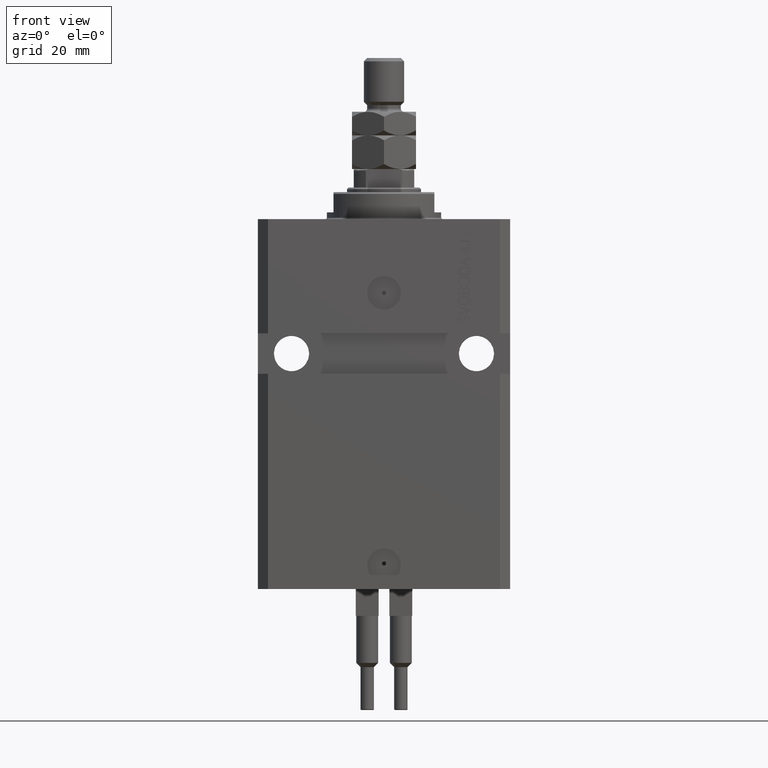
[diagram: clean part render]
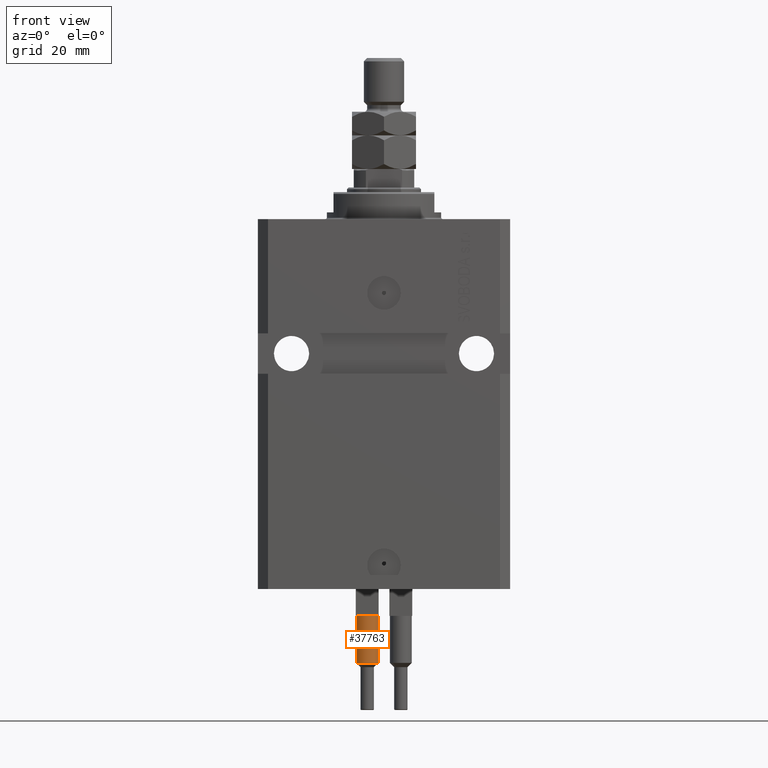
[diagram: same view with one face highlighted and labeled with its STEP entity id]
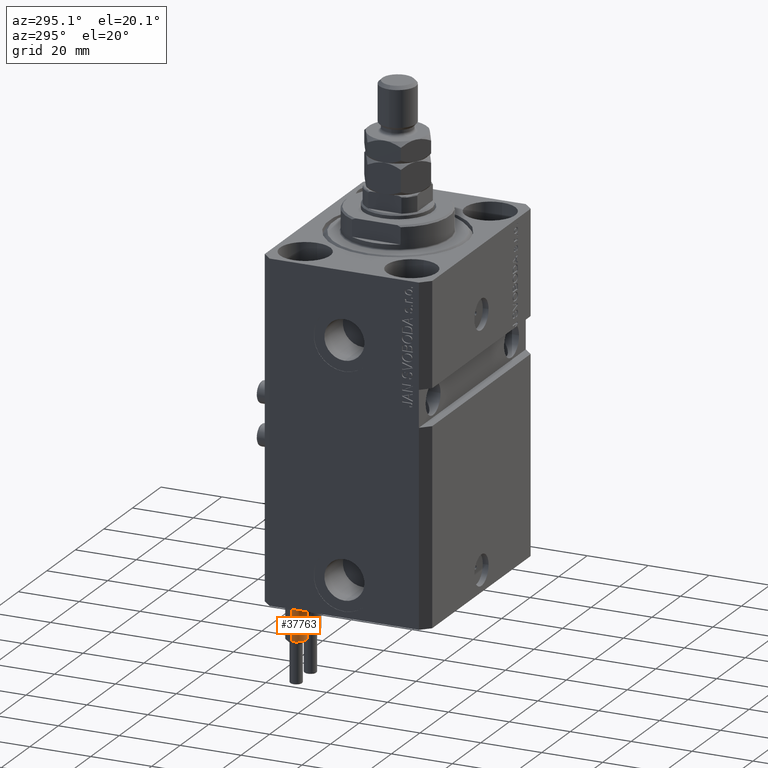
[diagram: same view with one face highlighted and labeled with its STEP entity id]
A machine part, front view. The second image highlights one B-rep face of the part: STEP entity #37763.
A second angle (auxiliary view) of the same face is appended — the face is thin or edge-on in the first view.
In plain terms, the highlighted cylindrical surface (edge-blend (fillet) strip) has radius 3.25 mm, axis along (0, 0, 1).
Its self-contained STEP definition (entity closure, byte-faithful):
#218 = EDGE_CURVE ( 'NONE', #31416, #31430, #26060, .T. ) ;
#880 = DIRECTION ( 'NONE',  ( 0.000000000000000000, 0.000000000000000000, 1.000000000000000000 ) ) ;
#1591 = VECTOR ( 'NONE', #38662, 1000.000000000000000 ) ;
#4065 = CIRCLE ( 'NONE', #16037, 3.250000000000000444 ) ;
#4569 = CARTESIAN_POINT ( 'NONE',  ( 2.883140648667699146, -1.500000000000000000, 40.00000000000000000 ) ) ;
#4698 = EDGE_CURVE ( 'NONE', #34133, #31430, #28416, .T. ) ;
#5425 = EDGE_CURVE ( 'NONE', #31416, #40782, #28453, .T. ) ;
#6313 = EDGE_CURVE ( 'NONE', #40782, #46821, #18599, .T. ) ;
#7706 = CYLINDRICAL_SURFACE ( 'NONE', #17501, 3.250000000000000444 ) ;
#8426 = CARTESIAN_POINT ( 'NONE',  ( 0.000000000000000000, 0.000000000000000000, 56.00000000000000000 ) ) ;
#8685 = DIRECTION ( 'NONE',  ( 1.000000000000000000, 0.000000000000000000, 0.000000000000000000 ) ) ;
#8868 = DIRECTION ( 'NONE',  ( 1.000000000000000000, 0.000000000000000000, 0.000000000000000000 ) ) ;
#12965 = DIRECTION ( 'NONE',  ( 1.000000000000000000, 0.000000000000000000, 0.000000000000000000 ) ) ;
#15065 = ORIENTED_EDGE ( 'NONE', *, *, #4698, .T. ) ;
#15550 = ORIENTED_EDGE ( 'NONE', *, *, #6313, .T. ) ;
#16037 = AXIS2_PLACEMENT_3D ( 'NONE', #45245, #40485, #41237 ) ;
#16798 = VERTEX_POINT ( 'NONE', #39816 ) ;
#17149 = DIRECTION ( 'NONE',  ( 0.000000000000000000, 0.000000000000000000, 1.000000000000000000 ) ) ;
#17501 = AXIS2_PLACEMENT_3D ( 'NONE', #8426, #27062, #39153 ) ;
#18247 = EDGE_LOOP ( 'NONE', ( #34375, #27334, #15550, #40215, #41063, #15065 ) ) ;
#18599 = LINE ( 'NONE', #33997, #48458 ) ;
#25561 = FACE_OUTER_BOUND ( 'NONE', #18247, .T. ) ;
#26060 = LINE ( 'NONE', #29857, #1591 ) ;
#27062 = DIRECTION ( 'NONE',  ( -0.000000000000000000, -0.000000000000000000, -1.000000000000000000 ) ) ;
#27334 = ORIENTED_EDGE ( 'NONE', *, *, #5425, .T. ) ;
#28416 = CIRCLE ( 'NONE', #31666, 3.250000000000000444 ) ;
#28453 = CIRCLE ( 'NONE', #40550, 3.250000000000000444 ) ;
#29543 = CARTESIAN_POINT ( 'NONE',  ( 3.250000000000000444, 3.980102097228898231E-16, 53.99999999999998579 ) ) ;
#29857 = CARTESIAN_POINT ( 'NONE',  ( 3.250000000000000444, 3.980102097228898231E-16, 56.00000000000000000 ) ) ;
#31416 = VERTEX_POINT ( 'NONE', #29543 ) ;
#31430 = VERTEX_POINT ( 'NONE', #37125 ) ;
#31575 = EDGE_CURVE ( 'NONE', #46821, #16798, #47109, .T. ) ;
#31666 = AXIS2_PLACEMENT_3D ( 'NONE', #43170, #880, #8685 ) ;
#33997 = CARTESIAN_POINT ( 'NONE',  ( -3.250000000000000444, 0.000000000000000000, 56.00000000000000000 ) ) ;
#34133 = VERTEX_POINT ( 'NONE', #4569 ) ;
#34375 = ORIENTED_EDGE ( 'NONE', *, *, #218, .F. ) ;
#35149 = CARTESIAN_POINT ( 'NONE',  ( 0.000000000000000000, 0.000000000000000000, 53.99999999999998579 ) ) ;
#37026 = DIRECTION ( 'NONE',  ( -0.000000000000000000, -0.000000000000000000, -1.000000000000000000 ) ) ;
#37125 = CARTESIAN_POINT ( 'NONE',  ( 3.250000000000000444, 3.980102097228898231E-16, 40.00000000000000000 ) ) ;
#37763 = ADVANCED_FACE ( 'NONE', ( #25561 ), #7706, .T. ) ;
#38662 = DIRECTION ( 'NONE',  ( -0.000000000000000000, -0.000000000000000000, -1.000000000000000000 ) ) ;
#39153 = DIRECTION ( 'NONE',  ( -1.000000000000000000, 0.000000000000000000, 0.000000000000000000 ) ) ;
#39415 = DIRECTION ( 'NONE',  ( 0.000000000000000000, 0.000000000000000000, -1.000000000000000000 ) ) ;
#39816 = CARTESIAN_POINT ( 'NONE',  ( -2.883140648667699146, -1.500000000000000000, 40.00000000000000000 ) ) ;
#40215 = ORIENTED_EDGE ( 'NONE', *, *, #31575, .T. ) ;
#40485 = DIRECTION ( 'NONE',  ( 0.000000000000000000, 0.000000000000000000, 1.000000000000000000 ) ) ;
#40550 = AXIS2_PLACEMENT_3D ( 'NONE', #35149, #39415, #12965 ) ;
#40782 = VERTEX_POINT ( 'NONE', #44619 ) ;
#41063 = ORIENTED_EDGE ( 'NONE', *, *, #44412, .T. ) ;
#41237 = DIRECTION ( 'NONE',  ( 1.000000000000000000, 0.000000000000000000, 0.000000000000000000 ) ) ;
#43170 = CARTESIAN_POINT ( 'NONE',  ( 0.000000000000000000, 0.000000000000000000, 40.00000000000000000 ) ) ;
#43603 = CARTESIAN_POINT ( 'NONE',  ( 0.000000000000000000, 0.000000000000000000, 40.00000000000000000 ) ) ;
#44412 = EDGE_CURVE ( 'NONE', #16798, #34133, #4065, .T. ) ;
#44515 = CARTESIAN_POINT ( 'NONE',  ( -3.250000000000000444, 0.000000000000000000, 40.00000000000000000 ) ) ;
#44619 = CARTESIAN_POINT ( 'NONE',  ( -3.250000000000000444, 0.000000000000000000, 53.99999999999998579 ) ) ;
#44725 = AXIS2_PLACEMENT_3D ( 'NONE', #43603, #17149, #8868 ) ;
#45245 = CARTESIAN_POINT ( 'NONE',  ( 0.000000000000000000, 0.000000000000000000, 40.00000000000000000 ) ) ;
#46821 = VERTEX_POINT ( 'NONE', #44515 ) ;
#47109 = CIRCLE ( 'NONE', #44725, 3.250000000000000444 ) ;
#48458 = VECTOR ( 'NONE', #37026, 1000.000000000000000 ) ;